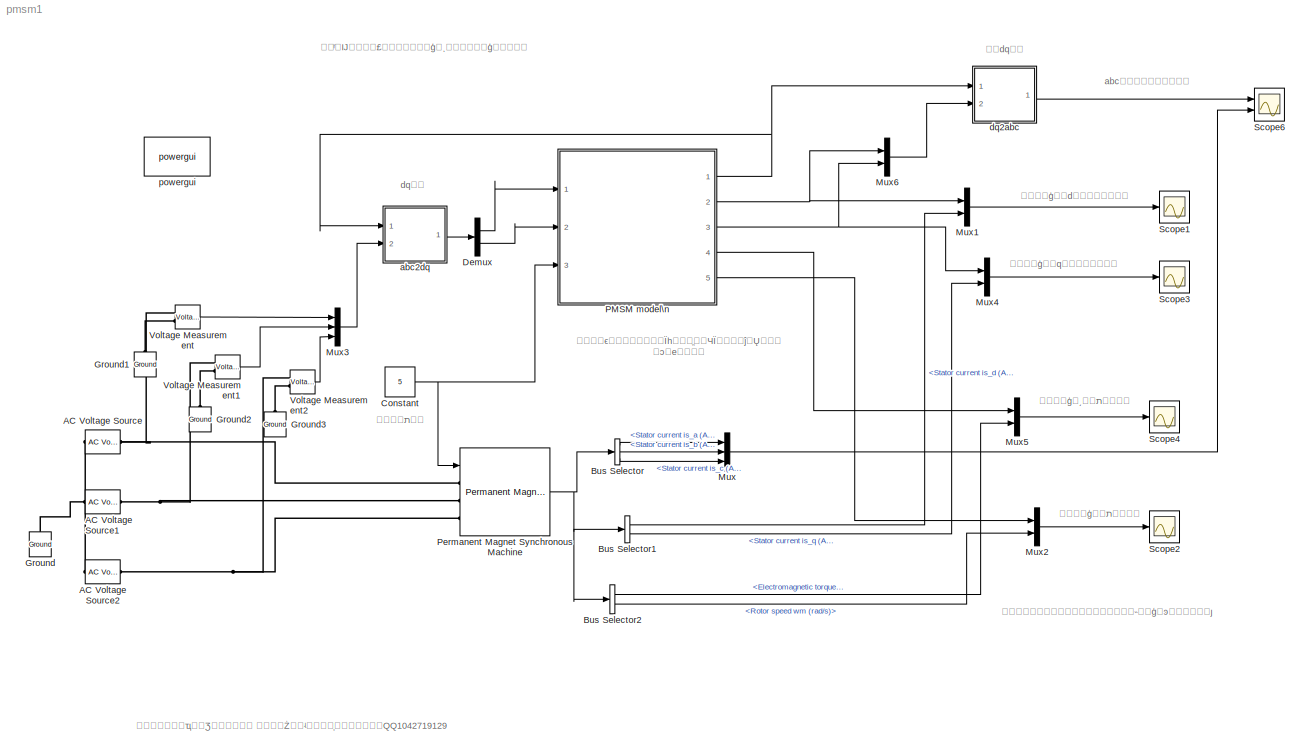
MODEL pmsm1
KIND model
BLOCK [Reference] AC Voltage Source  REF=powerlib/Electrical\nSources/AC Voltage Source
  Amplitude = 100
  Frequency = 60
  Measurements = None
  Phase = 0
  Ports = [0, 0, 0, 0, 0, 1, 1]
  SampleTime = 0
  SourceBlock = powerlib/Electrical\nSources/AC Voltage Source
  SourceType = AC Voltage Source
BLOCK [Reference] AC Voltage Source1  REF=powerlib/Electrical\nSources/AC Voltage Source
  Amplitude = 100
  Frequency = 60
  Measurements = None
  Phase = -120
  Ports = [0, 0, 0, 0, 0, 1, 1]
  SampleTime = 0
  SourceBlock = powerlib/Electrical\nSources/AC Voltage Source
  SourceType = AC Voltage Source
BLOCK [Reference] AC Voltage Source2  REF=powerlib/Electrical\nSources/AC Voltage Source
  Amplitude = 100
  Frequency = 60
  Measurements = None
  Phase = 120
  Ports = [0, 0, 0, 0, 0, 1, 1]
  SampleTime = 0
  SourceBlock = powerlib/Electrical\nSources/AC Voltage Source
  SourceType = AC Voltage Source
BLOCK [BusSelector] Bus Selector
  OutputSignals = Stator current is_a (A),Stator current is_b (A),Stator current is_c (A)
  Ports = [1, 3]
BLOCK [BusSelector] Bus Selector1
  OutputSignals = Stator current is_d (A),Stator current is_q (A)
  Ports = [1, 2]
BLOCK [BusSelector] Bus Selector2
  OutputSignals = Electromagnetic torque Te (N*m),Rotor speed wm (rad/s)
  Ports = [1, 2]
BLOCK [Constant] Constant
  Value = 5
BLOCK [Demux] Demux
  DisplayOption = bar
  Outputs = 2
  Ports = [1, 2]
BLOCK [Reference] Ground  REF=powerlib/Elements/Ground
  LConnTagsString = a
  Ports = [0, 0, 0, 0, 0, 1]
  SourceBlock = powerlib/Elements/Ground
  SourceType = Ground
BLOCK [Reference] Ground1  REF=powerlib/Elements/Ground
  LConnTagsString = a
  Ports = [0, 0, 0, 0, 0, 1]
  SourceBlock = powerlib/Elements/Ground
  SourceType = Ground
BLOCK [Reference] Ground2  REF=powerlib/Elements/Ground
  LConnTagsString = a
  Ports = [0, 0, 0, 0, 0, 1]
  SourceBlock = powerlib/Elements/Ground
  SourceType = Ground
BLOCK [Reference] Ground3  REF=powerlib/Elements/Ground
  LConnTagsString = a
  Ports = [0, 0, 0, 0, 0, 1]
  SourceBlock = powerlib/Elements/Ground
  SourceType = Ground
BLOCK [Mux] Mux
  DisplayOption = bar
  Inputs = 3
  Ports = [3, 1]
BLOCK [Mux] Mux1
  DisplayOption = bar
  Inputs = 2
  Ports = [2, 1]
BLOCK [Mux] Mux2
  DisplayOption = bar
  Inputs = 2
  Ports = [2, 1]
BLOCK [Mux] Mux3
  DisplayOption = bar
  Inputs = 3
  Ports = [3, 1]
BLOCK [Mux] Mux4
  DisplayOption = bar
  Inputs = 2
  Ports = [2, 1]
BLOCK [Mux] Mux5
  DisplayOption = bar
  Inputs = 2
  Ports = [2, 1]
BLOCK [Mux] Mux6
  DisplayOption = bar
  Inputs = 2
  Ports = [2, 1]
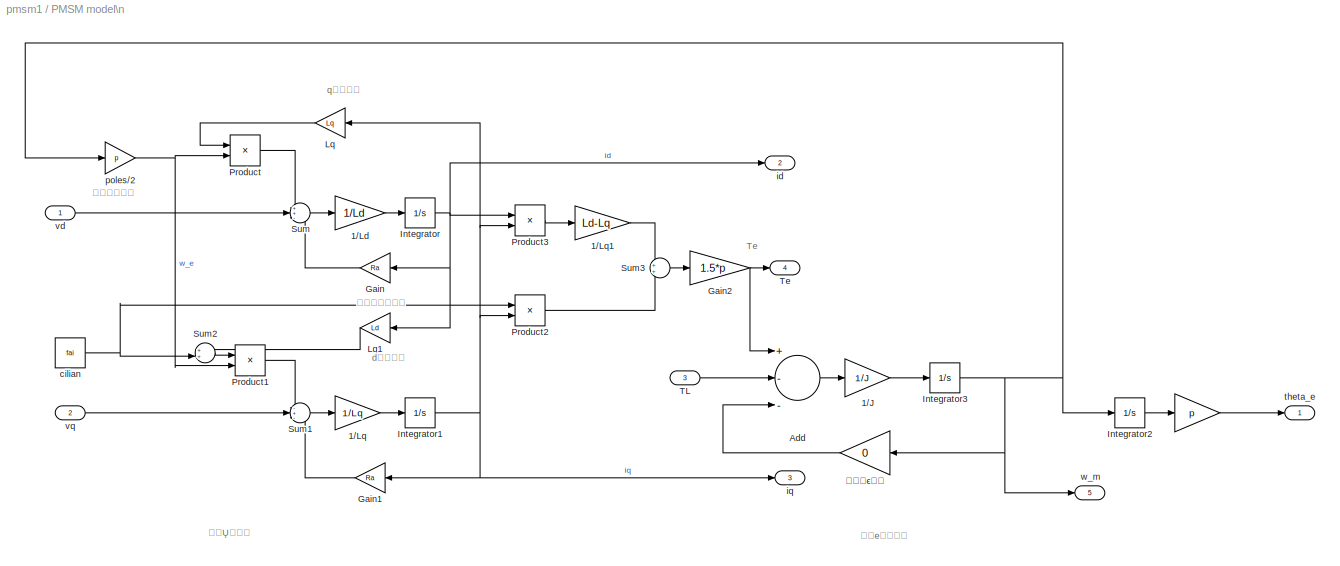
BLOCK [SubSystem] PMSM model\n
  FunctionWithSeparateData = off
  MaskCallbackString = |||||
  MaskEnableString = on,on,on,on,on,on
  MaskHideContents = off
  MaskIconFrame = on
  MaskIconOpaque = on
  MaskIconRotate = none
  MaskIconUnits = autoscale
  MaskPromptString = d����|q����|�������|ת������|����|������
  MaskStyleString = edit,edit,edit,edit,edit,edit
  MaskToolTipString = on,on,on,on,on,on
  MaskTunableValueString = on,on,on,on,on,on
  MaskValueString = 0.0085|0.0085|2.875|8e-4|0.175|60
  MaskVariables = Ld=@1;Lq=@2;Ra=@3;J=@4;fai=@5;p=@6;
  MaskVisibilityString = on,on,on,on,on,on
  MinAlgLoopOccurrences = off
  Ports = [3, 5]
  PropExecContextOutsideSubsystem = off
  RTWSystemCode = Auto
BLOCK [Gain] PMSM model\n/  
  Gain = p
  SaturateOnIntegerOverflow = off
BLOCK [Gain] PMSM model\n/1//J
  Gain = 1/J
  SaturateOnIntegerOverflow = off
BLOCK [Gain] PMSM model\n/1//Ld
  Gain = 1/Ld
BLOCK [Gain] PMSM model\n/1//Lq
  Gain = 1/Lq
BLOCK [Gain] PMSM model\n/1//Lq1
  Gain = Ld-Lq
BLOCK [Sum] PMSM model\n/Add
  InputSameDT = off
  Inputs = +--
  OutDataTypeMode = Inherit via internal rule
  Ports = [3, 1]
  SaturateOnIntegerOverflow = off
BLOCK [Gain] PMSM model\n/Gain
  Gain = Ra
BLOCK [Gain] PMSM model\n/Gain1
  Gain = Ra
BLOCK [Gain] PMSM model\n/Gain2
  Gain = 1.5*p
BLOCK [Integrator] PMSM model\n/Integrator
  Ports = [1, 1]
BLOCK [Integrator] PMSM model\n/Integrator1
  Ports = [1, 1]
BLOCK [Integrator] PMSM model\n/Integrator2
  Ports = [1, 1]
BLOCK [Integrator] PMSM model\n/Integrator3
  Ports = [1, 1]
BLOCK [Gain] PMSM model\n/Lq
  Gain = Lq
BLOCK [Gain] PMSM model\n/Lq1
  Gain = Ld
BLOCK [Product] PMSM model\n/Product
  Ports = [2, 1]
  RndMeth = Floor
BLOCK [Product] PMSM model\n/Product1
  Ports = [2, 1]
  RndMeth = Floor
BLOCK [Product] PMSM model\n/Product2
  Ports = [2, 1]
  RndMeth = Floor
BLOCK [Product] PMSM model\n/Product3
  Ports = [2, 1]
  RndMeth = Floor
BLOCK [Sum] PMSM model\n/Sum
  IconShape = round
  Inputs = ++-
  Ports = [3, 1]
BLOCK [Sum] PMSM model\n/Sum1
  IconShape = round
  Inputs = -+-
  Ports = [3, 1]
BLOCK [Sum] PMSM model\n/Sum2
  IconShape = round
  Inputs = ++|
  Ports = [2, 1]
BLOCK [Sum] PMSM model\n/Sum3
  IconShape = round
  Ports = [2, 1]
BLOCK [Inport] PMSM model\n/TL
  IconDisplay = Port number
  Port = 3
BLOCK [Outport] PMSM model\n/Te
  IconDisplay = Port number
  Port = 4
BLOCK [Constant] PMSM model\n/cilian
  Value = fai
BLOCK [Outport] PMSM model\n/id
  IconDisplay = Port number
  Port = 2
BLOCK [Outport] PMSM model\n/iq
  IconDisplay = Port number
  Port = 3
BLOCK [Gain] PMSM model\n/poles//2
  Gain = p
BLOCK [Outport] PMSM model\n/theta_e
  IconDisplay = Port number
BLOCK [Inport] PMSM model\n/vd
  IconDisplay = Port number
BLOCK [Inport] PMSM model\n/vq
  IconDisplay = Port number
  Port = 2
BLOCK [Outport] PMSM model\n/w_m
  IconDisplay = Port number
  Port = 5
BLOCK [Gain] PMSM model\n/ճ��ϵ��
  Gain = 0
BLOCK [Reference] Permanent Magnet Synchronous Machine  REF=powerlib/Machines/Permanent Magnet\nSynchronous Machine
  Flat = 120
  Flux = 0.175
  FluxDistribution = Sinusoidal
  Inductance = 8.5e-3
  InitialConditions = [0,0, 0,0]
  InitialConditions5ph = [0 0 0 0 0 0]
  La = 0.0085
  MachineConstant = Flux linkage established by magnets (V.s)
  Mechanical = [8e-4 0.0003035 60 0]
  MechanicalLoad = Torque Tm
  NbPhases = 3
  PolePairs = 60
  Ports = [1, 1, 0, 0, 0, 3]
  PresetModel = No
  RefAngle = 90 degrees behind phase A axis (modified Park)
  Resistance = 2.875
  RotorType = Round
  ShowDetailedParameters = on
  SourceBlock = powerlib/Machines/Permanent Magnet\nSynchronous Machine
  SourceType = Permanent Magnet Synchronous Machine
  TorqueCst = 15.75
  TsBlock = -1
  TsPowergui = 0
  VoltageCst = 1904.4893
  dqInductances = [8.5e-3,8.5e-3]
BLOCK [Scope] Scope1
  DataFormat = StructureWithTime
  Floating = off
  LimitDataPoints = off
  NumInputPorts = 1
  Ports = [1]
  SampleTime = 0
  SaveName = ScopeData1
  ZoomMode = yonly
BLOCK [Scope] Scope2
  DataFormat = StructureWithTime
  Floating = off
  LimitDataPoints = off
  NumInputPorts = 1
  Ports = [1]
  SampleTime = 0
  SaveName = ScopeData2
  ZoomMode = yonly
BLOCK [Scope] Scope3
  DataFormat = StructureWithTime
  Floating = off
  LimitDataPoints = off
  NumInputPorts = 1
  Ports = [1]
  SampleTime = 0
  SaveName = ScopeData3
  ZoomMode = yonly
BLOCK [Scope] Scope4
  DataFormat = StructureWithTime
  Floating = off
  LimitDataPoints = off
  NumInputPorts = 1
  Ports = [1]
  SampleTime = 0
  SaveName = ScopeData4
  ZoomMode = yonly
BLOCK [Scope] Scope6
  DataFormat = StructureWithTime
  Floating = off
  LimitDataPoints = off
  NumInputPorts = 2
  Ports = [2]
  SampleTime = 0
  SaveName = ScopeData6
  YMax = 5~5
  YMin = -5~-5
  ZoomMode = xonly
BLOCK [Reference] Voltage Measurement  REF=powerlib/Measurements/Voltage Measurement
  OutputType = Complex
  PSBequivalent = 0
  PhasorSimulation = off
  Ports = [0, 1, 0, 0, 0, 2]
  SourceBlock = powerlib/Measurements/Voltage Measurement
  SourceType = Voltage Measurement
BLOCK [Reference] Voltage Measurement1  REF=powerlib/Measurements/Voltage Measurement
  OutputType = Complex
  PSBequivalent = 0
  PhasorSimulation = off
  Ports = [0, 1, 0, 0, 0, 2]
  SourceBlock = powerlib/Measurements/Voltage Measurement
  SourceType = Voltage Measurement
BLOCK [Reference] Voltage Measurement2  REF=powerlib/Measurements/Voltage Measurement
  OutputType = Complex
  PSBequivalent = 0
  PhasorSimulation = off
  Ports = [0, 1, 0, 0, 0, 2]
  SourceBlock = powerlib/Measurements/Voltage Measurement
  SourceType = Voltage Measurement
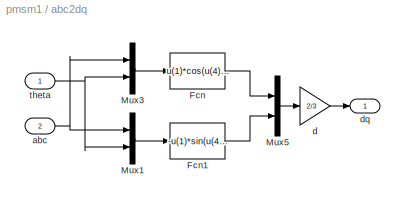
BLOCK [SubSystem] abc2dq
  FunctionWithSeparateData = off
  MaskHideContents = off
  MinAlgLoopOccurrences = off
  Ports = [2, 1]
  PropExecContextOutsideSubsystem = off
  RTWSystemCode = Auto
BLOCK [Fcn] abc2dq/Fcn
  Expr = u(1)*cos(u(4))+u(2)*cos(u(4)-2*pi/3)+u(3)*cos(u(4)+2*pi/3)
BLOCK [Fcn] abc2dq/Fcn1
  Expr = -u(1)*sin(u(4))-u(2)*sin(u(4)-2*pi/3)-u(3)*sin(u(4)+2*pi/3)
BLOCK [Mux] abc2dq/Mux1
  DisplayOption = bar
  Inputs = 2
  Ports = [2, 1]
BLOCK [Mux] abc2dq/Mux3
  DisplayOption = bar
  Inputs = 2
  Ports = [2, 1]
BLOCK [Mux] abc2dq/Mux5
  DisplayOption = bar
  Inputs = 2
  Ports = [2, 1]
BLOCK [Inport] abc2dq/abc
  IconDisplay = Port number
  Port = 2
BLOCK [Gain] abc2dq/d
  Gain = 2/3
  SaturateOnIntegerOverflow = off
BLOCK [Outport] abc2dq/dq
  IconDisplay = Port number
BLOCK [Inport] abc2dq/theta
  IconDisplay = Port number
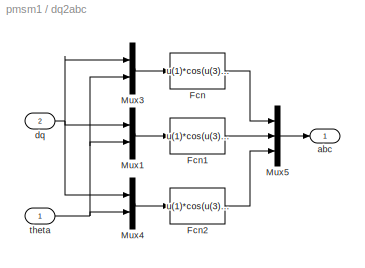
BLOCK [SubSystem] dq2abc
  FunctionWithSeparateData = off
  MaskHideContents = off
  MinAlgLoopOccurrences = off
  Ports = [2, 1]
  PropExecContextOutsideSubsystem = off
  RTWSystemCode = Auto
BLOCK [Fcn] dq2abc/Fcn
  Expr = u(1)*cos(u(3))-u(2)*sin(u(3))
BLOCK [Fcn] dq2abc/Fcn1
  Expr = u(1)*cos(u(3)-2*pi/3)-u(2)*sin(u(3)-2*pi/3)
BLOCK [Fcn] dq2abc/Fcn2
  Expr = u(1)*cos(u(3)+2*pi/3)-u(2)*sin(u(3)+2*pi/3)
BLOCK [Mux] dq2abc/Mux1
  DisplayOption = bar
  Inputs = 2
  Ports = [2, 1]
BLOCK [Mux] dq2abc/Mux3
  DisplayOption = bar
  Inputs = 2
  Ports = [2, 1]
BLOCK [Mux] dq2abc/Mux4
  DisplayOption = bar
  Inputs = 2
  Ports = [2, 1]
BLOCK [Mux] dq2abc/Mux5
  DisplayOption = bar
  Inputs = 3
  Ports = [3, 1]
BLOCK [Outport] dq2abc/abc
  IconDisplay = Port number
BLOCK [Inport] dq2abc/dq
  IconDisplay = Port number
  Port = 2
BLOCK [Inport] dq2abc/theta
  IconDisplay = Port number
BLOCK [Reference] powergui  REF=powerlib/powergui
  DisableRonSwitches = off
  DisableSnubberDevices = off
  DisableVfSwitches = off
  DisplayEquations = off
  DisplayStyle = 1
  EnableUseOfTLC = off
  ErrMax = 1e-4
  FreqAxis = off
  FunctionMessages = off
  HookPort = off
  Interpol = off
  Iterations = 50
  MaxFrequency = 1000
  Pbase = 100e6
  Ports = []
  Priority = 1
  ResistiveCurrentMeasurement = off
  RestoreLinks = warning
  SPID = off
  SampleTime = 50e-6
  ShowGrid = off
  SolverType = Tustin
  SourceBlock = powerlib/powergui
  SourceType = PSB option menu block
  StartTime = 0.0
  SwTol = 0
  UnitsV = kV
  UnitsW = MW
  UserDataPersistent = on
  Xlog = on
  Ylog = off
  ZoomFFT = off
  cycles = 1
  display = off
  echomessages = off
  frequency = 60
  frequencyindice = 60
  frequencyindicesteady = 1
  methode = off
  save = off
  variable = ZData
  x0status = blocks
ANNOTATION (root): abc��������Ա�
ANNOTATION (root): dq�任
ANNOTATION (root): ��dq�任
ANNOTATION (root): ��ͬ�Ĳ����£��Լ����ģ�ͺ��Դ���ģ�ͷ���
ANNOTATION (root): ����ģ�͵��ת�ضԱ�
ANNOTATION (root): ����ģ��d������Ա�
ANNOTATION (root): ����ģ��q������Ա�
ANNOTATION (root): ����ģ��ת�ٶԱ�
ANNOTATION (root): ����ϵͳ�����Ͷ�Ϊһ���ֱ��ЧΪ����ĵ�Ų���\n�ͻ�е����
ANNOTATION (root): ����ת��
ANNOTATION (root): �������ҵ��Ʒ������ �۸��Żݣ�ʵ����֤�������QQ1042719129
ANNOTATION (root): 锟斤拷锟斤拷锟斤拷锟捷讹拷锟斤拷锟斤拷锟斤拷锟斤拷锟斤拷说锟斤拷模锟酵斤拷锟斤拷锟斤拷准确
ANNOTATION PMSM model\n: Te
ANNOTATION PMSM model\n: d����
ANNOTATION PMSM model\n: q����
ANNOTATION PMSM model\n: ��Ų���
ANNOTATION PMSM model\n: ��е����
ANNOTATION PMSM model\n: ������
ANNOTATION PMSM model\n: �������
LINE Bus Selector1:1 -> Mux1:2
LINE Bus Selector1:2 -> Mux4:2
LINE Bus Selector2:1 -> Mux5:2
LINE Bus Selector2:2 -> Mux2:2
LINE Bus Selector:1 -> Mux:1
LINE Bus Selector:2 -> Mux:2
LINE Bus Selector:3 -> Mux:3
NET Constant:1 -> PMSM model\n:3, Permanent Magnet Synchronous Machine:1
LINE Demux:1 -> PMSM model\n:1
LINE Demux:2 -> PMSM model\n:2
LINE Mux1:1 -> Scope1:1
LINE Mux2:1 -> Scope2:1
LINE Mux3:1 -> abc2dq:2
LINE Mux4:1 -> Scope3:1
LINE Mux5:1 -> Scope4:1
LINE Mux6:1 -> dq2abc:2
LINE Mux:1 -> Scope6:2
LINE PMSM model\n/  :1 -> PMSM model\n/theta_e:1
LINE PMSM model\n/1//J:1 -> PMSM model\n/Integrator3:1
LINE PMSM model\n/1//Ld:1 -> PMSM model\n/Integrator:1
LINE PMSM model\n/1//Lq1:1 -> PMSM model\n/Sum3:1
LINE PMSM model\n/1//Lq:1 -> PMSM model\n/Integrator1:1
LINE PMSM model\n/Add:1 -> PMSM model\n/1//J:1
LINE PMSM model\n/Gain1:1 -> PMSM model\n/Sum1:3
NET PMSM model\n/Gain2:1 -> PMSM model\n/Add:1, PMSM model\n/Te:1
LINE PMSM model\n/Gain:1 -> PMSM model\n/Sum:3
NET PMSM model\n/Integrator1:1 -> PMSM model\n/Gain1:1, PMSM model\n/Lq:1, PMSM model\n/Product2:2, PMSM model\n/Product3:2, PMSM model\n/iq:1
LINE PMSM model\n/Integrator2:1 -> PMSM model\n/  :1
NET PMSM model\n/Integrator3:1 -> PMSM model\n/Integrator2:1, PMSM model\n/poles//2:1, PMSM model\n/w_m:1, PMSM model\n/ճ��ϵ��:1
NET PMSM model\n/Integrator:1 -> PMSM model\n/Gain:1, PMSM model\n/Lq1:1, PMSM model\n/Product3:1, PMSM model\n/id:1
LINE PMSM model\n/Lq1:1 -> PMSM model\n/Sum2:1
LINE PMSM model\n/Lq:1 -> PMSM model\n/Product:1
LINE PMSM model\n/Product1:1 -> PMSM model\n/Sum1:1
LINE PMSM model\n/Product2:1 -> PMSM model\n/Sum3:2
LINE PMSM model\n/Product3:1 -> PMSM model\n/1//Lq1:1
LINE PMSM model\n/Product:1 -> PMSM model\n/Sum:1
LINE PMSM model\n/Sum1:1 -> PMSM model\n/1//Lq:1
LINE PMSM model\n/Sum2:1 -> PMSM model\n/Product1:1
LINE PMSM model\n/Sum3:1 -> PMSM model\n/Gain2:1
LINE PMSM model\n/Sum:1 -> PMSM model\n/1//Ld:1
LINE PMSM model\n/TL:1 -> PMSM model\n/Add:2
NET PMSM model\n/cilian:1 -> PMSM model\n/Product2:1, PMSM model\n/Sum2:2
NET PMSM model\n/poles//2:1 -> PMSM model\n/Product1:2, PMSM model\n/Product:2
LINE PMSM model\n/vd:1 -> PMSM model\n/Sum:2
LINE PMSM model\n/vq:1 -> PMSM model\n/Sum1:2
LINE PMSM model\n/ճ��ϵ��:1 -> PMSM model\n/Add:3
NET PMSM model\n:1 -> abc2dq:1, dq2abc:1
NET PMSM model\n:2 -> Mux1:1, Mux6:1
NET PMSM model\n:3 -> Mux4:1, Mux6:2
LINE PMSM model\n:4 -> Mux5:1
LINE PMSM model\n:5 -> Mux2:1
NET Permanent Magnet Synchronous Machine:1 -> Bus Selector1:1, Bus Selector2:1, Bus Selector:1
LINE Voltage Measurement1:1 -> Mux3:2
LINE Voltage Measurement2:1 -> Mux3:3
LINE Voltage Measurement:1 -> Mux3:1
LINE abc2dq/Fcn1:1 -> abc2dq/Mux5:2
LINE abc2dq/Fcn:1 -> abc2dq/Mux5:1
LINE abc2dq/Mux1:1 -> abc2dq/Fcn1:1
LINE abc2dq/Mux3:1 -> abc2dq/Fcn:1
LINE abc2dq/Mux5:1 -> abc2dq/d:1
NET abc2dq/abc:1 -> abc2dq/Mux1:1, abc2dq/Mux3:1
LINE abc2dq/d:1 -> abc2dq/dq:1
NET abc2dq/theta:1 -> abc2dq/Mux1:2, abc2dq/Mux3:2
LINE abc2dq:1 -> Demux:1
LINE dq2abc/Fcn1:1 -> dq2abc/Mux5:2
LINE dq2abc/Fcn2:1 -> dq2abc/Mux5:3
LINE dq2abc/Fcn:1 -> dq2abc/Mux5:1
LINE dq2abc/Mux1:1 -> dq2abc/Fcn1:1
LINE dq2abc/Mux3:1 -> dq2abc/Fcn:1
LINE dq2abc/Mux4:1 -> dq2abc/Fcn2:1
LINE dq2abc/Mux5:1 -> dq2abc/abc:1
NET dq2abc/dq:1 -> dq2abc/Mux1:1, dq2abc/Mux3:1, dq2abc/Mux4:1
NET dq2abc/theta:1 -> dq2abc/Mux1:2, dq2abc/Mux3:2, dq2abc/Mux4:2
LINE dq2abc:1 -> Scope6:1
PNET net1: AC Voltage Source1:LConn1 -- AC Voltage Source2:LConn1 -- AC Voltage Source:LConn1 -- Ground:LConn1
PNET net2: AC Voltage Source1:RConn1 -- Permanent Magnet Synchronous Machine:LConn2 -- Voltage Measurement1:LConn1
PNET net3: AC Voltage Source2:RConn1 -- Permanent Magnet Synchronous Machine:LConn3 -- Voltage Measurement2:LConn1
PNET net4: AC Voltage Source:RConn1 -- Permanent Magnet Synchronous Machine:LConn1 -- Voltage Measurement:LConn1
PLINE Ground1:LConn1 -- Voltage Measurement:LConn2
PLINE Ground2:LConn1 -- Voltage Measurement1:LConn2
PLINE Ground3:LConn1 -- Voltage Measurement2:LConn2
note: NET lines group one-source signal fan-out (src -> all destinations, sorted); 1:1 wires keep LINE; PNET lines group multi-terminal physical nets as a canonical sorted terminal list (undirected conserving connections); 2-terminal nets keep the pairwise PLINE form
